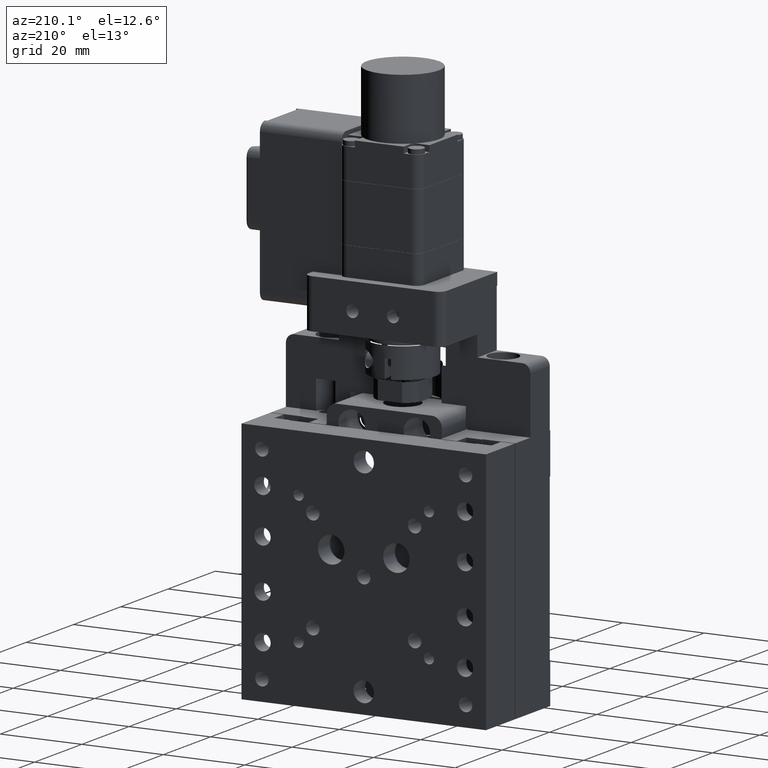
[diagram: clean part render]
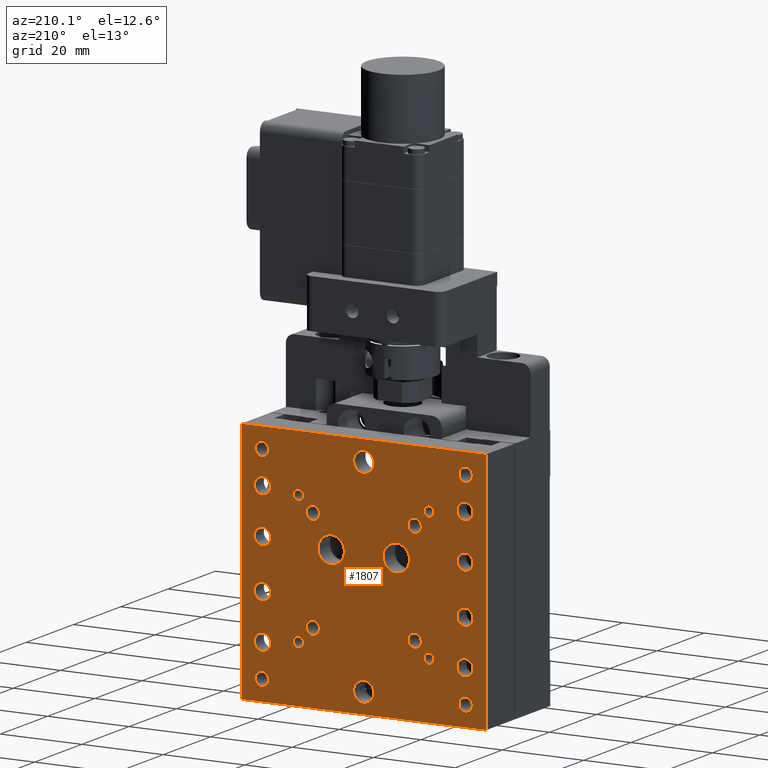
[diagram: same view with one face highlighted and labeled with its STEP entity id]
A machine part, auxiliary view. The second image highlights one B-rep face of the part: STEP entity #1807.
In plain terms, the highlighted planar face has unit normal (0, -1, 0).
Its self-contained STEP definition (entity closure, byte-faithful):
#21 = DIRECTION ( 'NONE',  ( -0.000000000000000000, 1.000000000000000000, -0.000000000000000000 ) ) ;
#325 = CARTESIAN_POINT ( 'NONE',  ( -27.44171959880799960, 14.10181245401395600, 47.49999999999996447 ) ) ;
#368 = EDGE_LOOP ( 'NONE', ( #432 ) ) ;
#432 = ORIENTED_EDGE ( 'NONE', *, *, #2571, .F. ) ;
#568 = VERTEX_POINT ( 'NONE', #3293 ) ;
#942 = LINE ( 'NONE', #12342, #2747 ) ;
#966 = DIRECTION ( 'NONE',  ( -0.000000000000000000, 1.000000000000000000, -0.000000000000000000 ) ) ;
#1092 = CARTESIAN_POINT ( 'NONE',  ( -2.591719598807937341, 14.10181245401396133, 64.14999999999996305 ) ) ;
#1143 = FACE_BOUND ( 'NONE', #4065, .T. ) ;
#1152 = EDGE_LOOP ( 'NONE', ( #14438 ) ) ;
#1154 = CIRCLE ( 'NONE', #2936, 1.649999999999998579 ) ;
#1227 = ORIENTED_EDGE ( 'NONE', *, *, #8513, .F. ) ;
#1386 = VERTEX_POINT ( 'NONE', #7091 ) ;
#1426 = DIRECTION ( 'NONE',  ( 0.000000000000000000, 0.000000000000000000, 1.000000000000000000 ) ) ;
#1528 = CIRCLE ( 'NONE', #11361, 1.250000000000001110 ) ;
#1598 = CARTESIAN_POINT ( 'NONE',  ( 27.40828040119206577, 14.10181245401396311, 32.49999999999997158 ) ) ;
#1638 = EDGE_LOOP ( 'NONE', ( #3059 ) ) ;
#1642 = CARTESIAN_POINT ( 'NONE',  ( 9.908280401192071096, 14.10181245401396311, 51.64999999999996305 ) ) ;
#1666 = CARTESIAN_POINT ( 'NONE',  ( -15.09171959880793068, 14.10181245401395955, 51.64999999999996305 ) ) ;
#1697 = DIRECTION ( 'NONE',  ( 0.000000000000000000, 0.000000000000000000, 1.000000000000000000 ) ) ;
#1773 = EDGE_LOOP ( 'NONE', ( #7178 ) ) ;
#1807 = ADVANCED_FACE ( 'NONE', ( #12720, #18325, #11318, #4039, #16640, #16736, #15332, #3856, #9662, #15613, #1143, #5350, #18413, #12541, #6756, #14211, #3953, #9567, #9845, #2458, #18141, #9751, #11144, #13846, #8251, #11049 ), #12810, .F. ) ;
#1898 = CARTESIAN_POINT ( 'NONE',  ( -27.59171959880794134, 14.10181245401395600, 89.14999999999996305 ) ) ;
#1959 = CIRCLE ( 'NONE', #5244, 2.000000000000001776 ) ;
#2021 = ORIENTED_EDGE ( 'NONE', *, *, #15030, .F. ) ;
#2077 = AXIS2_PLACEMENT_3D ( 'NONE', #2080, #5171, #13655 ) ;
#2080 = CARTESIAN_POINT ( 'NONE',  ( -2.591719598807937341, 14.10181245401396133, 62.49999999999997158 ) ) ;
#2157 = CARTESIAN_POINT ( 'NONE',  ( 27.40828040119206577, 14.10181245401396311, 92.49999999999997158 ) ) ;
#2190 = AXIS2_PLACEMENT_3D ( 'NONE', #2546, #12450, #18238 ) ;
#2221 = CARTESIAN_POINT ( 'NONE',  ( 22.40828040119192366, 14.10181245401396311, 89.15000000000004832 ) ) ;
#2420 = AXIS2_PLACEMENT_3D ( 'NONE', #16790, #9804, #13715 ) ;
#2458 = FACE_BOUND ( 'NONE', #8158, .T. ) ;
#2546 = CARTESIAN_POINT ( 'NONE',  ( 27.40828040119206577, 14.10181245401396311, 92.49999999999997158 ) ) ;
#2571 = EDGE_CURVE ( 'NONE', #7229, #7229, #3604, .T. ) ;
#2719 = DIRECTION ( 'NONE',  ( -0.000000000000000000, 1.000000000000000000, -0.000000000000000000 ) ) ;
#2747 = VECTOR ( 'NONE', #10753, 1000.000000000000000 ) ;
#2782 = VERTEX_POINT ( 'NONE', #12773 ) ;
#2804 = EDGE_CURVE ( 'NONE', #11432, #11432, #12852, .T. ) ;
#2858 = EDGE_LOOP ( 'NONE', ( #15928 ) ) ;
#2895 = DIRECTION ( 'NONE',  ( 0.000000000000000000, 0.000000000000000000, 1.000000000000000000 ) ) ;
#2936 = AXIS2_PLACEMENT_3D ( 'NONE', #8806, #10477, #1697 ) ;
#2946 = VERTEX_POINT ( 'NONE', #17590 ) ;
#3042 = VERTEX_POINT ( 'NONE', #17893 ) ;
#3059 = ORIENTED_EDGE ( 'NONE', *, *, #6115, .F. ) ;
#3165 = DIRECTION ( 'NONE',  ( 0.000000000000000000, 0.000000000000000000, 1.000000000000000000 ) ) ;
#3253 = EDGE_LOOP ( 'NONE', ( #12617 ) ) ;
#3293 = CARTESIAN_POINT ( 'NONE',  ( -18.59171959880793779, 14.10181245401395778, 79.74999999999997158 ) ) ;
#3305 = ORIENTED_EDGE ( 'NONE', *, *, #17033, .F. ) ;
#3345 = VERTEX_POINT ( 'NONE', #8861 ) ;
#3469 = ORIENTED_EDGE ( 'NONE', *, *, #4765, .F. ) ;
#3502 = ORIENTED_EDGE ( 'NONE', *, *, #12433, .F. ) ;
#3508 = AXIS2_PLACEMENT_3D ( 'NONE', #14035, #966, #11320 ) ;
#3580 = AXIS2_PLACEMENT_3D ( 'NONE', #10552, #14830, #10193 ) ;
#3604 = CIRCLE ( 'NONE', #2420, 2.500000000000002220 ) ;
#3628 = CARTESIAN_POINT ( 'NONE',  ( -10.59171959880793779, 14.10181245401395778, 70.74999999999998579 ) ) ;
#3812 = ORIENTED_EDGE ( 'NONE', *, *, #17882, .F. ) ;
#3823 = DIRECTION ( 'NONE',  ( 0.000000000000000000, 0.000000000000000000, 1.000000000000000000 ) ) ;
#3856 = FACE_BOUND ( 'NONE', #13070, .T. ) ;
#3901 = AXIS2_PLACEMENT_3D ( 'NONE', #6047, #5849, #11549 ) ;
#3953 = FACE_BOUND ( 'NONE', #4262, .T. ) ;
#4039 = FACE_BOUND ( 'NONE', #13513, .T. ) ;
#4056 = EDGE_CURVE ( 'NONE', #10900, #3042, #10144, .T. ) ;
#4065 = EDGE_LOOP ( 'NONE', ( #14016 ) ) ;
#4189 = DIRECTION ( 'NONE',  ( -0.000000000000000000, 1.000000000000000000, -0.000000000000000000 ) ) ;
#4262 = EDGE_LOOP ( 'NONE', ( #16473 ) ) ;
#4286 = CARTESIAN_POINT ( 'NONE',  ( 22.40828040119206932, 14.10181245401396311, 39.15000000000004832 ) ) ;
#4377 = DIRECTION ( 'NONE',  ( -0.000000000000000000, 1.000000000000000000, -0.000000000000000000 ) ) ;
#4385 = EDGE_LOOP ( 'NONE', ( #9140 ) ) ;
#4423 = CIRCLE ( 'NONE', #13973, 2.500000000000002220 ) ;
#4496 = CIRCLE ( 'NONE', #6894, 1.999999999999994893 ) ;
#4498 = DIRECTION ( 'NONE',  ( 0.000000000000000000, 0.000000000000000000, 1.000000000000000000 ) ) ;
#4615 = CARTESIAN_POINT ( 'NONE',  ( 27.40828040119206577, 14.10181245401396311, 92.49999999999997158 ) ) ;
#4765 = EDGE_CURVE ( 'NONE', #13473, #13473, #1959, .T. ) ;
#4784 = CIRCLE ( 'NONE', #15818, 1.649999999999998579 ) ;
#5085 = EDGE_CURVE ( 'NONE', #9532, #9532, #17761, .T. ) ;
#5171 = DIRECTION ( 'NONE',  ( -0.000000000000000000, 1.000000000000000000, -0.000000000000000000 ) ) ;
#5244 = AXIS2_PLACEMENT_3D ( 'NONE', #11218, #2719, #2895 ) ;
#5284 = DIRECTION ( 'NONE',  ( 0.000000000000000000, 0.000000000000000000, 1.000000000000000000 ) ) ;
#5350 = FACE_BOUND ( 'NONE', #10742, .T. ) ;
#5368 = ORIENTED_EDGE ( 'NONE', *, *, #7615, .F. ) ;
#5388 = CIRCLE ( 'NONE', #16101, 1.999999999999994893 ) ;
#5405 = ORIENTED_EDGE ( 'NONE', *, *, #5810, .F. ) ;
#5433 = CIRCLE ( 'NONE', #16461, 3.250000000000002665 ) ;
#5437 = VECTOR ( 'NONE', #5972, 1000.000000000000000 ) ;
#5453 = EDGE_CURVE ( 'NONE', #16077, #16077, #4784, .T. ) ;
#5561 = EDGE_LOOP ( 'NONE', ( #13767 ) ) ;
#5642 = DIRECTION ( 'NONE',  ( -0.000000000000000000, 1.000000000000000000, -0.000000000000000000 ) ) ;
#5656 = CARTESIAN_POINT ( 'NONE',  ( -27.44171959880786815, 14.10181245401395600, 70.49999999999998579 ) ) ;
#5688 = CIRCLE ( 'NONE', #2077, 1.649999999999984812 ) ;
#5724 = EDGE_LOOP ( 'NONE', ( #7477 ) ) ;
#5752 = VERTEX_POINT ( 'NONE', #11450 ) ;
#5810 = EDGE_CURVE ( 'NONE', #568, #568, #1528, .T. ) ;
#5849 = DIRECTION ( 'NONE',  ( -0.000000000000000000, 1.000000000000000000, -0.000000000000000000 ) ) ;
#5972 = DIRECTION ( 'NONE',  ( -1.000000000000000000, -1.156482317317871478E-16, 0.000000000000000000 ) ) ;
#6029 = CARTESIAN_POINT ( 'NONE',  ( 22.25828040119200324, 14.10181245401396311, 47.49999999999996447 ) ) ;
#6047 = CARTESIAN_POINT ( 'NONE',  ( 22.25828040119203877, 14.10181245401396311, 56.49999999999997158 ) ) ;
#6115 = EDGE_CURVE ( 'NONE', #10582, #10582, #9908, .T. ) ;
#6228 = VERTEX_POINT ( 'NONE', #1666 ) ;
#6297 = ORIENTED_EDGE ( 'NONE', *, *, #5085, .F. ) ;
#6365 = EDGE_CURVE ( 'NONE', #11116, #11116, #17634, .T. ) ;
#6408 = CARTESIAN_POINT ( 'NONE',  ( -18.59171959880793779, 14.10181245401395778, 46.49999999999997158 ) ) ;
#6583 = EDGE_CURVE ( 'NONE', #7002, #7002, #14411, .T. ) ;
#6613 = EDGE_LOOP ( 'NONE', ( #1227 ) ) ;
#6638 = VERTEX_POINT ( 'NONE', #12834 ) ;
#6747 = DIRECTION ( 'NONE',  ( 0.000000000000000000, 0.000000000000000000, 1.000000000000000000 ) ) ;
#6756 = FACE_BOUND ( 'NONE', #2858, .T. ) ;
#6812 = CARTESIAN_POINT ( 'NONE',  ( -27.59171959880794134, 14.10181245401395600, 39.14999999999997016 ) ) ;
#6838 = AXIS2_PLACEMENT_3D ( 'NONE', #16037, #4377, #3165 ) ;
#6894 = AXIS2_PLACEMENT_3D ( 'NONE', #13988, #15574, #11196 ) ;
#7002 = VERTEX_POINT ( 'NONE', #9995 ) ;
#7047 = EDGE_LOOP ( 'NONE', ( #7874 ) ) ;
#7090 = CARTESIAN_POINT ( 'NONE',  ( 22.40828040119206932, 14.10181245401396311, 37.50000000000004974 ) ) ;
#7091 = CARTESIAN_POINT ( 'NONE',  ( 5.408280401192065767, 14.10181245401396133, 70.74999999999998579 ) ) ;
#7163 = EDGE_CURVE ( 'NONE', #1386, #1386, #5433, .T. ) ;
#7178 = ORIENTED_EDGE ( 'NONE', *, *, #14141, .F. ) ;
#7229 = VERTEX_POINT ( 'NONE', #14410 ) ;
#7234 = DIRECTION ( 'NONE',  ( 0.000000000000000000, 0.000000000000000000, 1.000000000000000000 ) ) ;
#7246 = VERTEX_POINT ( 'NONE', #6029 ) ;
#7405 = CARTESIAN_POINT ( 'NONE',  ( 22.25828040119203877, 14.10181245401396311, 58.49999999999997158 ) ) ;
#7477 = ORIENTED_EDGE ( 'NONE', *, *, #13434, .F. ) ;
#7615 = EDGE_CURVE ( 'NONE', #16028, #16028, #14687, .T. ) ;
#7659 = ORIENTED_EDGE ( 'NONE', *, *, #6365, .F. ) ;
#7874 = ORIENTED_EDGE ( 'NONE', *, *, #2804, .F. ) ;
#7963 = DIRECTION ( 'NONE',  ( -0.000000000000000000, 1.000000000000000000, -0.000000000000000000 ) ) ;
#8094 = DIRECTION ( 'NONE',  ( -0.000000000000000000, 1.000000000000000000, -0.000000000000000000 ) ) ;
#8158 = EDGE_LOOP ( 'NONE', ( #7659 ) ) ;
#8184 = EDGE_CURVE ( 'NONE', #8776, #8776, #9461, .T. ) ;
#8231 = CARTESIAN_POINT ( 'NONE',  ( 22.25828040119223772, 14.10181245401396311, 79.49999999999997158 ) ) ;
#8251 = FACE_OUTER_BOUND ( 'NONE', #10122, .T. ) ;
#8513 = EDGE_CURVE ( 'NONE', #13326, #13326, #18401, .T. ) ;
#8526 = EDGE_CURVE ( 'NONE', #3345, #3345, #16318, .T. ) ;
#8776 = VERTEX_POINT ( 'NONE', #10272 ) ;
#8802 = EDGE_LOOP ( 'NONE', ( #12002 ) ) ;
#8806 = CARTESIAN_POINT ( 'NONE',  ( 22.40828040119192366, 14.10181245401396311, 87.50000000000005684 ) ) ;
#8861 = CARTESIAN_POINT ( 'NONE',  ( 9.908280401192071096, 14.10181245401396311, 76.64999999999994884 ) ) ;
#8885 = ORIENTED_EDGE ( 'NONE', *, *, #9003, .F. ) ;
#8950 = CARTESIAN_POINT ( 'NONE',  ( 22.25828040119223772, 14.10181245401396311, 81.49999999999995737 ) ) ;
#9003 = EDGE_CURVE ( 'NONE', #6228, #6228, #17828, .T. ) ;
#9091 = CARTESIAN_POINT ( 'NONE',  ( 13.40828040119206399, 14.10181245401396133, 79.74999999999997158 ) ) ;
#9140 = ORIENTED_EDGE ( 'NONE', *, *, #8184, .F. ) ;
#9231 = VERTEX_POINT ( 'NONE', #3628 ) ;
#9291 = ORIENTED_EDGE ( 'NONE', *, *, #4056, .F. ) ;
#9368 = DIRECTION ( 'NONE',  ( -0.000000000000000000, -0.000000000000000000, -1.000000000000000000 ) ) ;
#9461 = CIRCLE ( 'NONE', #15701, 1.999999999999988010 ) ;
#9532 = VERTEX_POINT ( 'NONE', #1898 ) ;
#9567 = FACE_BOUND ( 'NONE', #15131, .T. ) ;
#9576 = DIRECTION ( 'NONE',  ( -0.000000000000000000, 1.000000000000000000, -0.000000000000000000 ) ) ;
#9608 = EDGE_LOOP ( 'NONE', ( #2021 ) ) ;
#9616 = AXIS2_PLACEMENT_3D ( 'NONE', #7090, #9910, #15581 ) ;
#9662 = FACE_BOUND ( 'NONE', #1773, .T. ) ;
#9734 = AXIS2_PLACEMENT_3D ( 'NONE', #14092, #4189, #17240 ) ;
#9751 = FACE_BOUND ( 'NONE', #9608, .T. ) ;
#9779 = DIRECTION ( 'NONE',  ( 0.000000000000000000, 0.000000000000000000, 1.000000000000000000 ) ) ;
#9804 = DIRECTION ( 'NONE',  ( -0.000000000000000000, 1.000000000000000000, -0.000000000000000000 ) ) ;
#9845 = FACE_BOUND ( 'NONE', #15457, .T. ) ;
#9904 = EDGE_CURVE ( 'NONE', #17347, #17347, #4423, .T. ) ;
#9908 = CIRCLE ( 'NONE', #14946, 1.250000000000001110 ) ;
#9910 = DIRECTION ( 'NONE',  ( -0.000000000000000000, 1.000000000000000000, -0.000000000000000000 ) ) ;
#9995 = CARTESIAN_POINT ( 'NONE',  ( -15.09171959880793068, 14.10181245401395955, 76.64999999999994884 ) ) ;
#10122 = EDGE_LOOP ( 'NONE', ( #16395, #10668, #3812, #9291 ) ) ;
#10144 = LINE ( 'NONE', #4615, #12672 ) ;
#10193 = DIRECTION ( 'NONE',  ( 0.000000000000000000, 0.000000000000000000, 1.000000000000000000 ) ) ;
#10272 = CARTESIAN_POINT ( 'NONE',  ( -27.44171959880776512, 14.10181245401395600, 81.49999999999995737 ) ) ;
#10358 = AXIS2_PLACEMENT_3D ( 'NONE', #6408, #8094, #12380 ) ;
#10396 = CARTESIAN_POINT ( 'NONE',  ( 22.25828040119213114, 14.10181245401396311, 70.49999999999998579 ) ) ;
#10477 = DIRECTION ( 'NONE',  ( -0.000000000000000000, 1.000000000000000000, -0.000000000000000000 ) ) ;
#10523 = DIRECTION ( 'NONE',  ( 0.000000000000000000, 0.000000000000000000, 1.000000000000000000 ) ) ;
#10552 = CARTESIAN_POINT ( 'NONE',  ( -27.44171959880786815, 14.10181245401395600, 68.49999999999997158 ) ) ;
#10582 = VERTEX_POINT ( 'NONE', #9091 ) ;
#10668 = ORIENTED_EDGE ( 'NONE', *, *, #17199, .T. ) ;
#10742 = EDGE_LOOP ( 'NONE', ( #8885 ) ) ;
#10753 = DIRECTION ( 'NONE',  ( -0.000000000000000000, -0.000000000000000000, -1.000000000000000000 ) ) ;
#10824 = CIRCLE ( 'NONE', #13152, 1.649999999999991696 ) ;
#10855 = LINE ( 'NONE', #15127, #12815 ) ;
#10900 = VERTEX_POINT ( 'NONE', #2157 ) ;
#10933 = DIRECTION ( 'NONE',  ( -0.000000000000000000, 1.000000000000000000, -0.000000000000000000 ) ) ;
#10961 = ORIENTED_EDGE ( 'NONE', *, *, #13092, .F. ) ;
#10978 = DIRECTION ( 'NONE',  ( 0.000000000000000000, 0.000000000000000000, 1.000000000000000000 ) ) ;
#11048 = CIRCLE ( 'NONE', #16703, 1.250000000000001110 ) ;
#11049 = FACE_BOUND ( 'NONE', #5561, .T. ) ;
#11116 = VERTEX_POINT ( 'NONE', #4286 ) ;
#11144 = FACE_BOUND ( 'NONE', #6613, .T. ) ;
#11196 = DIRECTION ( 'NONE',  ( 0.000000000000000000, 0.000000000000000000, 1.000000000000000000 ) ) ;
#11218 = CARTESIAN_POINT ( 'NONE',  ( 22.25828040119213114, 14.10181245401396311, 68.49999999999997158 ) ) ;
#11318 = FACE_BOUND ( 'NONE', #5724, .T. ) ;
#11320 = DIRECTION ( 'NONE',  ( 0.000000000000000000, 0.000000000000000000, 1.000000000000000000 ) ) ;
#11361 = AXIS2_PLACEMENT_3D ( 'NONE', #17174, #14288, #13075 ) ;
#11432 = VERTEX_POINT ( 'NONE', #7405 ) ;
#11450 = CARTESIAN_POINT ( 'NONE',  ( -27.44171959880796052, 14.10181245401395600, 58.49999999999997158 ) ) ;
#11549 = DIRECTION ( 'NONE',  ( 0.000000000000000000, 0.000000000000000000, 1.000000000000000000 ) ) ;
#11907 = CARTESIAN_POINT ( 'NONE',  ( 5.408280401192065767, 14.10181245401396133, 67.49999999999997158 ) ) ;
#11919 = CIRCLE ( 'NONE', #16083, 1.999999999999994893 ) ;
#11970 = CARTESIAN_POINT ( 'NONE',  ( -27.44171959880796052, 14.10181245401395600, 56.49999999999997158 ) ) ;
#12002 = ORIENTED_EDGE ( 'NONE', *, *, #16735, .F. ) ;
#12017 = AXIS2_PLACEMENT_3D ( 'NONE', #8231, #10933, #12339 ) ;
#12033 = EDGE_CURVE ( 'NONE', #18087, #18087, #1154, .T. ) ;
#12234 = DIRECTION ( 'NONE',  ( -0.000000000000000000, 1.000000000000000000, -0.000000000000000000 ) ) ;
#12339 = DIRECTION ( 'NONE',  ( 0.000000000000000000, 0.000000000000000000, 1.000000000000000000 ) ) ;
#12342 = CARTESIAN_POINT ( 'NONE',  ( -32.59171959880794134, 14.10181245401395600, 92.49999999999997158 ) ) ;
#12380 = DIRECTION ( 'NONE',  ( 0.000000000000000000, 0.000000000000000000, 1.000000000000000000 ) ) ;
#12433 = EDGE_CURVE ( 'NONE', #9231, #9231, #15190, .T. ) ;
#12450 = DIRECTION ( 'NONE',  ( 1.156482317317871478E-16, -1.000000000000000000, 0.000000000000000000 ) ) ;
#12541 = FACE_BOUND ( 'NONE', #1152, .T. ) ;
#12587 = CARTESIAN_POINT ( 'NONE',  ( -27.44171959880776512, 14.10181245401395600, 79.49999999999997158 ) ) ;
#12617 = ORIENTED_EDGE ( 'NONE', *, *, #15878, .F. ) ;
#12672 = VECTOR ( 'NONE', #13207, 1000.000000000000000 ) ;
#12720 = FACE_BOUND ( 'NONE', #14216, .T. ) ;
#12773 = CARTESIAN_POINT ( 'NONE',  ( -32.59171959880794134, 14.10181245401395600, 32.49999999999997158 ) ) ;
#12810 = PLANE ( 'NONE',  #2190 ) ;
#12815 = VECTOR ( 'NONE', #9368, 1000.000000000000000 ) ;
#12834 = CARTESIAN_POINT ( 'NONE',  ( 27.40828040119206577, 14.10181245401396311, 32.49999999999997158 ) ) ;
#12838 = CARTESIAN_POINT ( 'NONE',  ( -2.591719598807937341, 14.10181245401395955, 37.49999999999997158 ) ) ;
#12852 = CIRCLE ( 'NONE', #3901, 1.999999999999994893 ) ;
#12857 = DIRECTION ( 'NONE',  ( 0.000000000000000000, 0.000000000000000000, 1.000000000000000000 ) ) ;
#12894 = LINE ( 'NONE', #1598, #5437 ) ;
#13070 = EDGE_LOOP ( 'NONE', ( #5368 ) ) ;
#13075 = DIRECTION ( 'NONE',  ( 0.000000000000000000, 0.000000000000000000, 1.000000000000000000 ) ) ;
#13092 = EDGE_CURVE ( 'NONE', #5752, #5752, #11919, .T. ) ;
#13152 = AXIS2_PLACEMENT_3D ( 'NONE', #16902, #7963, #6747 ) ;
#13162 = EDGE_CURVE ( 'NONE', #10900, #6638, #10855, .T. ) ;
#13190 = CARTESIAN_POINT ( 'NONE',  ( -27.59171959880794134, 14.10181245401395600, 37.49999999999997158 ) ) ;
#13207 = DIRECTION ( 'NONE',  ( -1.000000000000000000, -1.156482317317871478E-16, 0.000000000000000000 ) ) ;
#13326 = VERTEX_POINT ( 'NONE', #14451 ) ;
#13419 = CARTESIAN_POINT ( 'NONE',  ( -2.591719598807937341, 14.10181245401395955, 39.99999999999997158 ) ) ;
#13434 = EDGE_CURVE ( 'NONE', #18278, #18278, #14021, .T. ) ;
#13473 = VERTEX_POINT ( 'NONE', #10396 ) ;
#13513 = EDGE_LOOP ( 'NONE', ( #3469 ) ) ;
#13655 = DIRECTION ( 'NONE',  ( 0.000000000000000000, 0.000000000000000000, 1.000000000000000000 ) ) ;
#13715 = DIRECTION ( 'NONE',  ( 0.000000000000000000, 0.000000000000000000, 1.000000000000000000 ) ) ;
#13767 = ORIENTED_EDGE ( 'NONE', *, *, #8526, .F. ) ;
#13846 = FACE_BOUND ( 'NONE', #13944, .T. ) ;
#13944 = EDGE_LOOP ( 'NONE', ( #5405 ) ) ;
#13973 = AXIS2_PLACEMENT_3D ( 'NONE', #12838, #15357, #9779 ) ;
#13988 = CARTESIAN_POINT ( 'NONE',  ( -27.44171959880799960, 14.10181245401395600, 45.49999999999997158 ) ) ;
#14016 = ORIENTED_EDGE ( 'NONE', *, *, #6583, .F. ) ;
#14021 = CIRCLE ( 'NONE', #3580, 2.000000000000001776 ) ;
#14035 = CARTESIAN_POINT ( 'NONE',  ( -15.09171959880793068, 14.10181245401395955, 49.99999999999997158 ) ) ;
#14092 = CARTESIAN_POINT ( 'NONE',  ( -27.59171959880794134, 14.10181245401395600, 87.49999999999997158 ) ) ;
#14141 = EDGE_CURVE ( 'NONE', #14164, #14164, #5688, .T. ) ;
#14164 = VERTEX_POINT ( 'NONE', #1092 ) ;
#14211 = FACE_BOUND ( 'NONE', #368, .T. ) ;
#14216 = EDGE_LOOP ( 'NONE', ( #10961 ) ) ;
#14288 = DIRECTION ( 'NONE',  ( -0.000000000000000000, 1.000000000000000000, -0.000000000000000000 ) ) ;
#14294 = EDGE_LOOP ( 'NONE', ( #3305 ) ) ;
#14410 = CARTESIAN_POINT ( 'NONE',  ( -2.591719598807937341, 14.10181245401395955, 89.99999999999997158 ) ) ;
#14411 = CIRCLE ( 'NONE', #15901, 1.649999999999984812 ) ;
#14438 = ORIENTED_EDGE ( 'NONE', *, *, #7163, .F. ) ;
#14451 = CARTESIAN_POINT ( 'NONE',  ( -18.59171959880793779, 14.10181245401395778, 47.74999999999997158 ) ) ;
#14520 = VERTEX_POINT ( 'NONE', #325 ) ;
#14687 = CIRCLE ( 'NONE', #12017, 1.999999999999988010 ) ;
#14830 = DIRECTION ( 'NONE',  ( -0.000000000000000000, 1.000000000000000000, -0.000000000000000000 ) ) ;
#14889 = CARTESIAN_POINT ( 'NONE',  ( 9.908280401192071096, 14.10181245401396311, 74.99999999999997158 ) ) ;
#14946 = AXIS2_PLACEMENT_3D ( 'NONE', #15209, #12234, #3823 ) ;
#15030 = EDGE_CURVE ( 'NONE', #2946, #2946, #11048, .T. ) ;
#15118 = AXIS2_PLACEMENT_3D ( 'NONE', #14889, #17695, #10978 ) ;
#15127 = CARTESIAN_POINT ( 'NONE',  ( 27.40828040119206577, 14.10181245401396311, 92.49999999999997158 ) ) ;
#15131 = EDGE_LOOP ( 'NONE', ( #6297 ) ) ;
#15190 = CIRCLE ( 'NONE', #6838, 3.250000000000002665 ) ;
#15209 = CARTESIAN_POINT ( 'NONE',  ( 13.40828040119206399, 14.10181245401396133, 78.49999999999997158 ) ) ;
#15254 = DIRECTION ( 'NONE',  ( 0.000000000000000000, 0.000000000000000000, 1.000000000000000000 ) ) ;
#15332 = FACE_BOUND ( 'NONE', #4385, .T. ) ;
#15356 = DIRECTION ( 'NONE',  ( -0.000000000000000000, 1.000000000000000000, -0.000000000000000000 ) ) ;
#15357 = DIRECTION ( 'NONE',  ( -0.000000000000000000, 1.000000000000000000, -0.000000000000000000 ) ) ;
#15457 = EDGE_LOOP ( 'NONE', ( #16026 ) ) ;
#15528 = CARTESIAN_POINT ( 'NONE',  ( 22.25828040119200324, 14.10181245401396311, 45.49999999999997158 ) ) ;
#15545 = CARTESIAN_POINT ( 'NONE',  ( -15.09171959880793068, 14.10181245401395955, 74.99999999999997158 ) ) ;
#15548 = CARTESIAN_POINT ( 'NONE',  ( 13.40828040119206399, 14.10181245401396133, 46.49999999999997158 ) ) ;
#15565 = DIRECTION ( 'NONE',  ( -0.000000000000000000, 1.000000000000000000, -0.000000000000000000 ) ) ;
#15574 = DIRECTION ( 'NONE',  ( -0.000000000000000000, 1.000000000000000000, -0.000000000000000000 ) ) ;
#15581 = DIRECTION ( 'NONE',  ( 0.000000000000000000, 0.000000000000000000, 1.000000000000000000 ) ) ;
#15613 = FACE_BOUND ( 'NONE', #14294, .T. ) ;
#15701 = AXIS2_PLACEMENT_3D ( 'NONE', #12587, #15565, #12857 ) ;
#15818 = AXIS2_PLACEMENT_3D ( 'NONE', #13190, #21, #1426 ) ;
#15878 = EDGE_CURVE ( 'NONE', #14520, #14520, #4496, .T. ) ;
#15901 = AXIS2_PLACEMENT_3D ( 'NONE', #15545, #5642, #7234 ) ;
#15928 = ORIENTED_EDGE ( 'NONE', *, *, #9904, .F. ) ;
#16007 = VERTEX_POINT ( 'NONE', #1642 ) ;
#16026 = ORIENTED_EDGE ( 'NONE', *, *, #12033, .F. ) ;
#16028 = VERTEX_POINT ( 'NONE', #8950 ) ;
#16037 = CARTESIAN_POINT ( 'NONE',  ( -10.59171959880793779, 14.10181245401395778, 67.49999999999997158 ) ) ;
#16077 = VERTEX_POINT ( 'NONE', #6812 ) ;
#16083 = AXIS2_PLACEMENT_3D ( 'NONE', #11970, #16251, #4498 ) ;
#16101 = AXIS2_PLACEMENT_3D ( 'NONE', #15528, #9576, #15254 ) ;
#16251 = DIRECTION ( 'NONE',  ( -0.000000000000000000, 1.000000000000000000, -0.000000000000000000 ) ) ;
#16318 = CIRCLE ( 'NONE', #15118, 1.649999999999984812 ) ;
#16395 = ORIENTED_EDGE ( 'NONE', *, *, #13162, .T. ) ;
#16461 = AXIS2_PLACEMENT_3D ( 'NONE', #11907, #16572, #10523 ) ;
#16473 = ORIENTED_EDGE ( 'NONE', *, *, #5453, .F. ) ;
#16572 = DIRECTION ( 'NONE',  ( -0.000000000000000000, 1.000000000000000000, -0.000000000000000000 ) ) ;
#16640 = FACE_BOUND ( 'NONE', #3253, .T. ) ;
#16703 = AXIS2_PLACEMENT_3D ( 'NONE', #15548, #15356, #5284 ) ;
#16735 = EDGE_CURVE ( 'NONE', #7246, #7246, #5388, .T. ) ;
#16736 = FACE_BOUND ( 'NONE', #8802, .T. ) ;
#16790 = CARTESIAN_POINT ( 'NONE',  ( -2.591719598807937341, 14.10181245401395955, 87.49999999999997158 ) ) ;
#16902 = CARTESIAN_POINT ( 'NONE',  ( 9.908280401192071096, 14.10181245401396311, 49.99999999999997158 ) ) ;
#17033 = EDGE_CURVE ( 'NONE', #16007, #16007, #10824, .T. ) ;
#17174 = CARTESIAN_POINT ( 'NONE',  ( -18.59171959880793779, 14.10181245401395778, 78.49999999999997158 ) ) ;
#17199 = EDGE_CURVE ( 'NONE', #6638, #2782, #12894, .T. ) ;
#17240 = DIRECTION ( 'NONE',  ( 0.000000000000000000, 0.000000000000000000, 1.000000000000000000 ) ) ;
#17347 = VERTEX_POINT ( 'NONE', #13419 ) ;
#17523 = EDGE_LOOP ( 'NONE', ( #3502 ) ) ;
#17590 = CARTESIAN_POINT ( 'NONE',  ( 13.40828040119206399, 14.10181245401396133, 47.74999999999997158 ) ) ;
#17634 = CIRCLE ( 'NONE', #9616, 1.649999999999998579 ) ;
#17695 = DIRECTION ( 'NONE',  ( -0.000000000000000000, 1.000000000000000000, -0.000000000000000000 ) ) ;
#17761 = CIRCLE ( 'NONE', #9734, 1.649999999999998579 ) ;
#17828 = CIRCLE ( 'NONE', #3508, 1.649999999999991696 ) ;
#17882 = EDGE_CURVE ( 'NONE', #3042, #2782, #942, .T. ) ;
#17893 = CARTESIAN_POINT ( 'NONE',  ( -32.59171959880794134, 14.10181245401395600, 92.49999999999997158 ) ) ;
#18087 = VERTEX_POINT ( 'NONE', #2221 ) ;
#18141 = FACE_BOUND ( 'NONE', #1638, .T. ) ;
#18238 = DIRECTION ( 'NONE',  ( 1.000000000000000000, 1.156482317317871478E-16, 0.000000000000000000 ) ) ;
#18278 = VERTEX_POINT ( 'NONE', #5656 ) ;
#18325 = FACE_BOUND ( 'NONE', #7047, .T. ) ;
#18401 = CIRCLE ( 'NONE', #10358, 1.250000000000001110 ) ;
#18413 = FACE_BOUND ( 'NONE', #17523, .T. ) ;